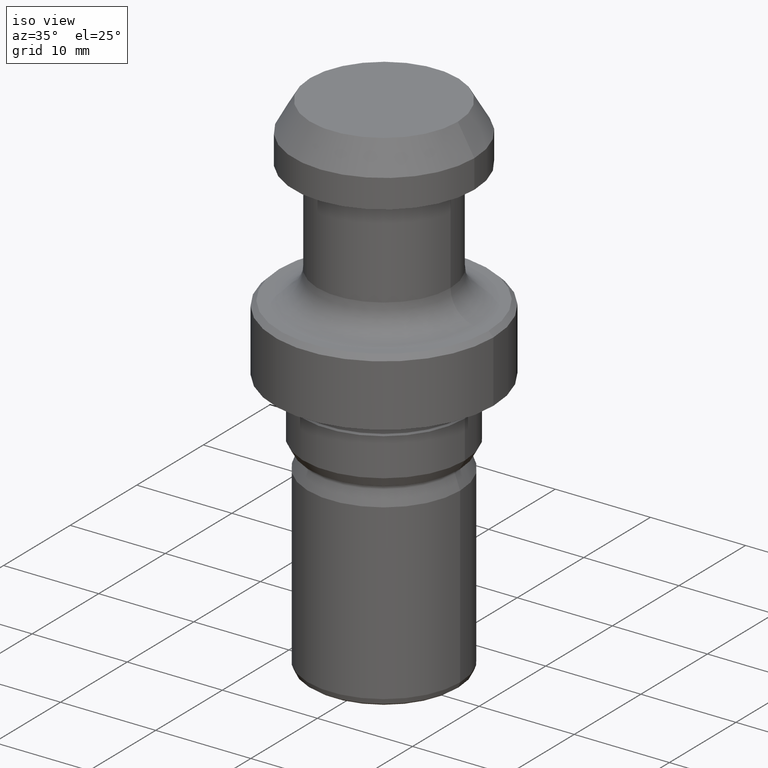
[diagram: clean part render]
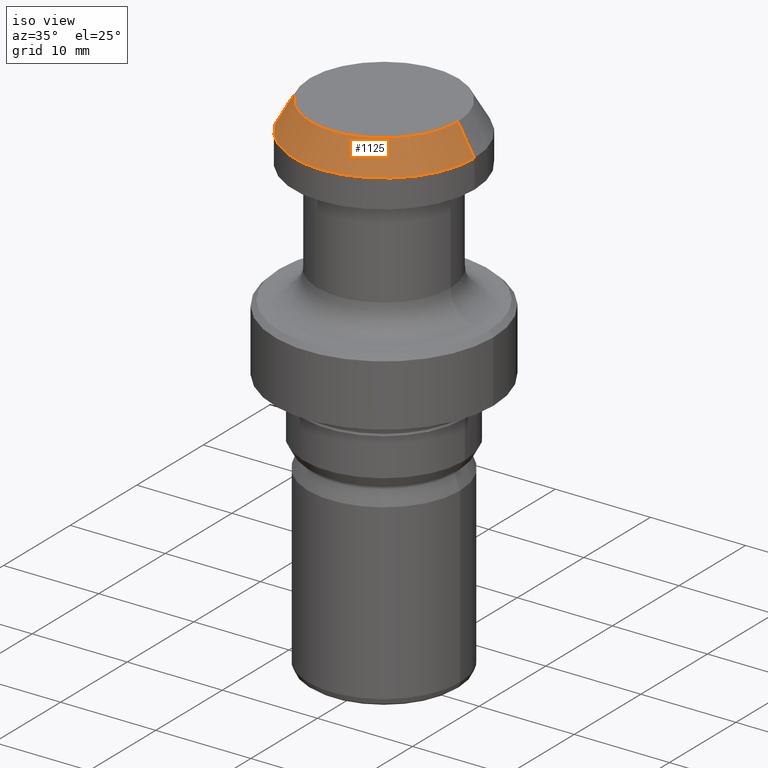
[diagram: same view with one face highlighted and labeled with its STEP entity id]
A machine part, iso view. The second image highlights one B-rep face of the part: STEP entity #1125.
In plain terms, the highlighted conical surface has half-angle 30 deg.
Its self-contained STEP definition (entity closure, byte-faithful):
#69 = CARTESIAN_POINT ( 'NONE',  ( -9.500000000000000000, 1.163414459189985500E-015, -2.999999999999999600 ) ) ;
#110 = CARTESIAN_POINT ( 'NONE',  ( -7.767949192431131200, 0.0000000000000000000, 0.0000000000000000000 ) ) ;
#119 = VERTEX_POINT ( 'NONE', #793 ) ;
#120 = CARTESIAN_POINT ( 'NONE',  ( 9.500000000000000000, 1.163414459189985500E-015, -2.999999999999999600 ) ) ;
#142 = EDGE_CURVE ( 'NONE', #500, #1095, #711, .T. ) ;
#150 = DIRECTION ( 'NONE',  ( -1.000000000000000000, 0.0000000000000000000, 0.0000000000000000000 ) ) ;
#195 = AXIS2_PLACEMENT_3D ( 'NONE', #485, #640, #565 ) ;
#226 = LINE ( 'NONE', #441, #1144 ) ;
#235 = VERTEX_POINT ( 'NONE', #69 ) ;
#242 = EDGE_CURVE ( 'NONE', #500, #235, #226, .T. ) ;
#248 = CARTESIAN_POINT ( 'NONE',  ( 7.767949192431131200, 1.057356935317495300E-015, 0.0000000000000000000 ) ) ;
#386 = AXIS2_PLACEMENT_3D ( 'NONE', #599, #772, #150 ) ;
#398 = CIRCLE ( 'NONE', #195, 9.500000000000000000 ) ;
#440 = EDGE_LOOP ( 'NONE', ( #970, #898, #745, #821 ) ) ;
#441 = CARTESIAN_POINT ( 'NONE',  ( -9.500000000000000000, 0.0000000000000000000, -2.999999999999999600 ) ) ;
#485 = CARTESIAN_POINT ( 'NONE',  ( 0.0000000000000000000, 0.0000000000000000000, -2.999999999999999600 ) ) ;
#500 = VERTEX_POINT ( 'NONE', #110 ) ;
#508 = VECTOR ( 'NONE', #742, 1000.000000000000000 ) ;
#544 = CARTESIAN_POINT ( 'NONE',  ( 0.0000000000000000000, 0.0000000000000000000, 0.0000000000000000000 ) ) ;
#565 = DIRECTION ( 'NONE',  ( 1.000000000000000000, 0.0000000000000000000, 0.0000000000000000000 ) ) ;
#599 = CARTESIAN_POINT ( 'NONE',  ( 0.0000000000000000000, 0.0000000000000000000, -2.999999999999999600 ) ) ;
#612 = EDGE_CURVE ( 'NONE', #235, #119, #398, .T. ) ;
#640 = DIRECTION ( 'NONE',  ( -0.0000000000000000000, -0.0000000000000000000, 1.000000000000000000 ) ) ;
#711 = CIRCLE ( 'NONE', #815, 7.767949192431131200 ) ;
#742 = DIRECTION ( 'NONE',  ( 0.4999999999999981100, 6.123233995736742600E-017, -0.8660254037844397100 ) ) ;
#745 = ORIENTED_EDGE ( 'NONE', *, *, #242, .T. ) ;
#769 = DIRECTION ( 'NONE',  ( -0.4999999999999981100, 0.0000000000000000000, -0.8660254037844397100 ) ) ;
#772 = DIRECTION ( 'NONE',  ( 0.0000000000000000000, 0.0000000000000000000, -1.000000000000000000 ) ) ;
#793 = CARTESIAN_POINT ( 'NONE',  ( 9.500000000000000000, 0.0000000000000000000, -2.999999999999999600 ) ) ;
#815 = AXIS2_PLACEMENT_3D ( 'NONE', #544, #1000, #1076 ) ;
#821 = ORIENTED_EDGE ( 'NONE', *, *, #612, .T. ) ;
#898 = ORIENTED_EDGE ( 'NONE', *, *, #142, .F. ) ;
#912 = EDGE_CURVE ( 'NONE', #1095, #119, #985, .T. ) ;
#970 = ORIENTED_EDGE ( 'NONE', *, *, #912, .F. ) ;
#985 = LINE ( 'NONE', #120, #508 ) ;
#1000 = DIRECTION ( 'NONE',  ( -0.0000000000000000000, -0.0000000000000000000, 1.000000000000000000 ) ) ;
#1013 = CONICAL_SURFACE ( 'NONE', #386, 9.500000000000000000, 0.5235987755982967100 ) ;
#1068 = FACE_OUTER_BOUND ( 'NONE', #440, .T. ) ;
#1076 = DIRECTION ( 'NONE',  ( 1.000000000000000000, 0.0000000000000000000, 0.0000000000000000000 ) ) ;
#1095 = VERTEX_POINT ( 'NONE', #248 ) ;
#1125 = ADVANCED_FACE ( 'NONE', ( #1068 ), #1013, .T. ) ;
#1144 = VECTOR ( 'NONE', #769, 1000.000000000000000 ) ;